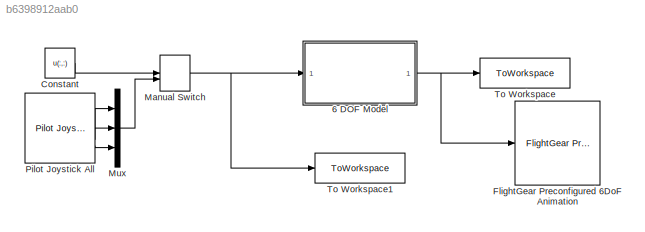
MODEL slx_b6398912aab0
KIND model
CONFIG AbsTol = auto
CONFIG EnableMultiTasking = off
CONFIG FixedStep = auto
CONFIG MaxStep = auto
CONFIG MinStep = auto
CONFIG RelTol = 1e-3
CONFIG SampleTimeConstraint = Unconstrained
CONFIG SolverName = VariableStepAuto
CONFIG StartTime = 0.0
CONFIG StopTime = simTime
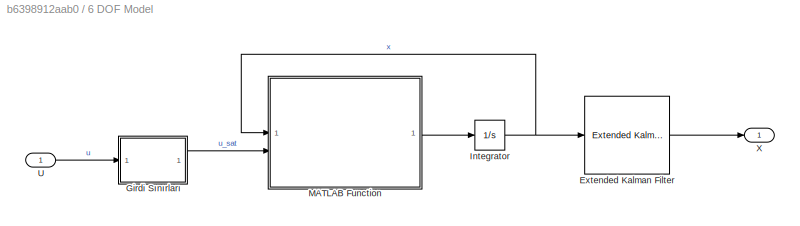
BLOCK [SubSystem] 6 DOF Model
BLOCK [Reference] 6 DOF Model/Extended Kalman Filter  REF=sharedTrackingLibrary/Extended Kalman Filter
  Commented = through
  LibrarySourceBlock = cstblocks/State Estimation/Extended Kalman Filter
  SourceBlock = sharedTrackingLibrary/Extended Kalman Filter
  SourceType = Extended Kalman Filter
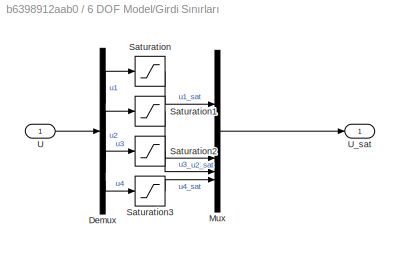
BLOCK [SubSystem] 6 DOF Model/Girdi Sınırları
BLOCK [Demux] 6 DOF Model/Girdi Sınırları/Demux
BLOCK [Mux] 6 DOF Model/Girdi Sınırları/Mux
  DisplayOption = bar
BLOCK [Saturate] 6 DOF Model/Girdi Sınırları/Saturation
  LowerLimit = u1min
  UpperLimit = u1max
BLOCK [Saturate] 6 DOF Model/Girdi Sınırları/Saturation1
  LowerLimit = u2min
  UpperLimit = u2max
BLOCK [Saturate] 6 DOF Model/Girdi Sınırları/Saturation2
  LowerLimit = u3min
  UpperLimit = u3max
BLOCK [Saturate] 6 DOF Model/Girdi Sınırları/Saturation3
  LowerLimit = u4min
  UpperLimit = u4max
BLOCK [Inport] 6 DOF Model/Girdi Sınırları/U
BLOCK [Outport] 6 DOF Model/Girdi Sınırları/U_sat
BLOCK [Integrator] 6 DOF Model/Integrator
  InitialCondition = x0(:,:)
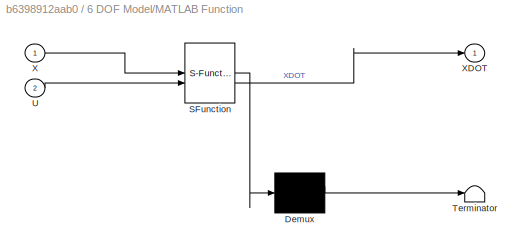
BLOCK [SubSystem] 6 DOF Model/MATLAB Function
  ErrorFcn = Stateflow.Translate.translate
  PermitHierarchicalResolution = ExplicitOnly
  SFBlockType = MATLAB Function
  TreatAsAtomicUnit = on
BLOCK [Demux] 6 DOF Model/MATLAB Function/ Demux 
  Outputs = 1
BLOCK [S-Function] 6 DOF Model/MATLAB Function/ SFunction 
  EnableBusSupport = off
  FunctionName = sf_sfun
  PortCounts = [2 2]
  SFcnIsStateOwnerBlock = off
  SFunctionDeploymentMode = off
  Tag = Stateflow S-Function 2
BLOCK [Terminator] 6 DOF Model/MATLAB Function/ Terminator 
BLOCK [Inport] 6 DOF Model/MATLAB Function/U
  Port = 2
BLOCK [Inport] 6 DOF Model/MATLAB Function/X
BLOCK [Outport] 6 DOF Model/MATLAB Function/XDOT
BLOCK [Inport] 6 DOF Model/U
BLOCK [Outport] 6 DOF Model/X
BLOCK [Constant] Constant
  Value = u(:,:)
BLOCK [Reference] FlightGear Preconfigured 6DoF Animation  REF=aerolibfltsims/FlightGear
Preconfigured
6DoF Animation
  Commented = on
  SourceBlock = aerolibfltsims/FlightGear\nPreconfigured\n6DoF Animation
  SourceType = FlightGearQuick6DoFAnimation
BLOCK [ManualSwitch] Manual Switch
BLOCK [Mux] Mux
  Commented = on
  DisplayOption = bar
  Inputs = 3
BLOCK [Reference] Pilot Joystick All  REF=aerolibanimutils/Pilot Joystick
  Commented = on
  LibrarySourceBlock = aerolibanimutils/Pilot Joystick All
  SourceBlock = aerolibanimutils/Pilot Joystick
  SourceType = PilotJoystick
BLOCK [ToWorkspace] To Workspace
  FixptAsFi = on
  MaxDataPoints = inf
  SampleTime = -1
  SaveFormat = Timeseries
  VariableName = SimulatedOutputs
BLOCK [ToWorkspace] To Workspace1
  FixptAsFi = on
  MaxDataPoints = inf
  SampleTime = -1
  SaveFormat = Timeseries
  VariableName = SimulatedInputs
LINE 6 DOF Model/Extended Kalman Filter:1 -> 6 DOF Model/X:1
LINE 6 DOF Model/Girdi Sınırları/Demux:1 -> 6 DOF Model/Girdi Sınırları/Saturation:1
LINE 6 DOF Model/Girdi Sınırları/Demux:2 -> 6 DOF Model/Girdi Sınırları/Saturation1:1
LINE 6 DOF Model/Girdi Sınırları/Demux:3 -> 6 DOF Model/Girdi Sınırları/Saturation2:1
LINE 6 DOF Model/Girdi Sınırları/Demux:4 -> 6 DOF Model/Girdi Sınırları/Saturation3:1
LINE 6 DOF Model/Girdi Sınırları/Mux:1 -> 6 DOF Model/Girdi Sınırları/U_sat:1
LINE 6 DOF Model/Girdi Sınırları/Saturation1:1 -> 6 DOF Model/Girdi Sınırları/Mux:2
LINE 6 DOF Model/Girdi Sınırları/Saturation2:1 -> 6 DOF Model/Girdi Sınırları/Mux:3
LINE 6 DOF Model/Girdi Sınırları/Saturation3:1 -> 6 DOF Model/Girdi Sınırları/Mux:4
LINE 6 DOF Model/Girdi Sınırları/Saturation:1 -> 6 DOF Model/Girdi Sınırları/Mux:1
LINE 6 DOF Model/Girdi Sınırları/U:1 -> 6 DOF Model/Girdi Sınırları/Demux:1
LINE 6 DOF Model/Girdi Sınırları:1 -> 6 DOF Model/MATLAB Function:2
NET 6 DOF Model/Integrator:1 -> 6 DOF Model/Extended Kalman Filter:1, 6 DOF Model/MATLAB Function:1
LINE 6 DOF Model/MATLAB Function:1 -> 6 DOF Model/Integrator:1
LINE 6 DOF Model/U:1 -> 6 DOF Model/Girdi Sınırları:1
NET 6 DOF Model:1 -> FlightGear Preconfigured 6DoF Animation:1, To Workspace:1
LINE Constant:1 -> Manual Switch:1
NET Manual Switch:1 -> 6 DOF Model:1, To Workspace1:1
LINE Mux:1 -> Manual Switch:2
LINE Pilot Joystick All:1 -> Mux:1
LINE Pilot Joystick All:2 -> Mux:2
LINE Pilot Joystick All:3 -> Mux:3
note: NET lines group one-source signal fan-out (src -> all destinations, sorted); 1:1 wires keep LINE
CHART 6 DOF Model/MATLAB Function states=1 transitions=1
  STATE_LABEL 'eML_blk_kernel()'
  STATE_LABEL 'SCRIPT:\nfunction XDOT = ATABEY_model(X, U)\n\n    XDOT = ATABEY_dynamics(X, U);\n    \nend'
CHART  states=0 transitions=0
